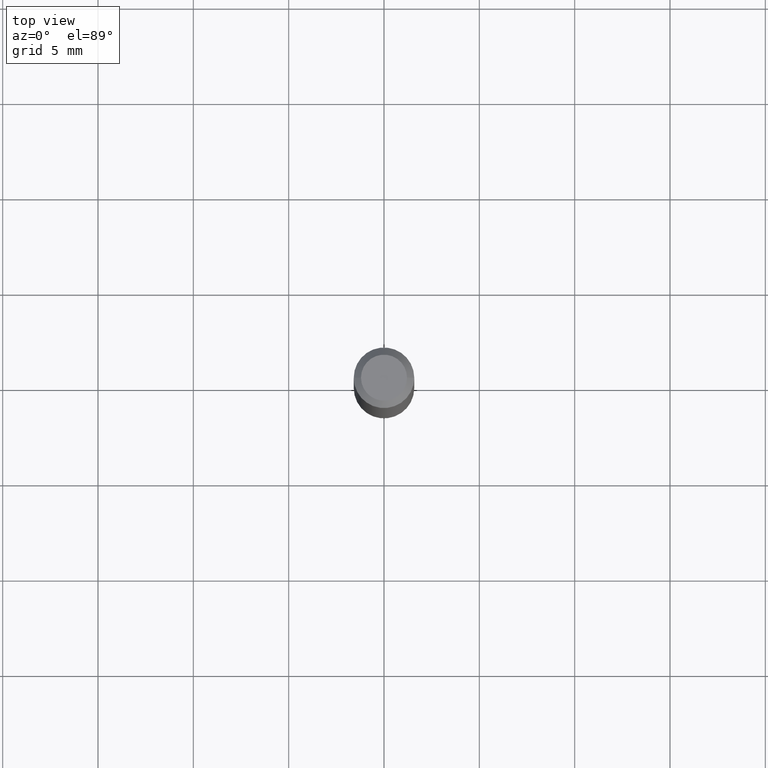
[diagram: clean part render]
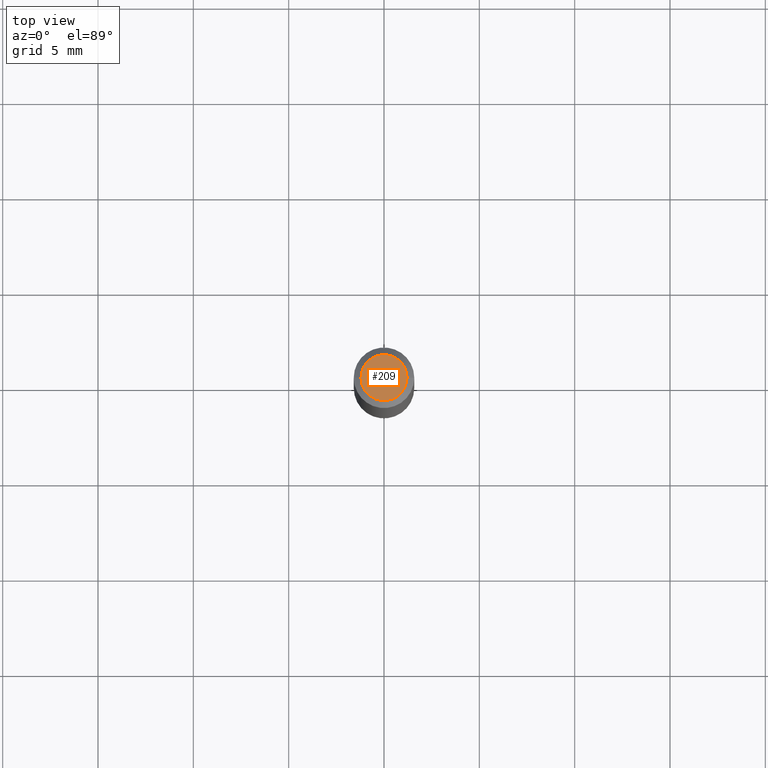
[diagram: same view with one face highlighted and labeled with its STEP entity id]
A machine part, top view. The second image highlights one B-rep face of the part: STEP entity #209.
In plain terms, the highlighted planar face has unit normal (0, -0, -1).
Its self-contained STEP definition (entity closure, byte-faithful):
#31 = FACE_OUTER_BOUND ( 'NONE', #199, .T. ) ;
#35 = AXIS2_PLACEMENT_3D ( 'NONE', #306, #129, #51 ) ;
#51 = DIRECTION ( 'NONE',  ( 1.000000000000000000, -6.982962677686267499E-15, 4.852736867747366768E-29 ) ) ;
#103 = CARTESIAN_POINT ( 'NONE',  ( -6.958212115706747638E-45, 9.934482783937485755E-31, 2.845348956448708805E-16 ) ) ;
#129 = DIRECTION ( 'NONE',  ( -2.445468806185136597E-29, 3.491481338843145583E-15, 1.000000000000000000 ) ) ;
#138 = CARTESIAN_POINT ( 'NONE',  ( 3.316907271900976096E-16, 0.04749999999999999362, -2.357791577261395620E-17 ) ) ;
#186 = EDGE_CURVE ( 'NONE', #259, #352, #384, .T. ) ;
#199 = EDGE_LOOP ( 'NONE', ( #454, #216 ) ) ;
#208 = AXIS2_PLACEMENT_3D ( 'NONE', #103, #240, #400 ) ;
#209 = ADVANCED_FACE ( 'NONE', ( #31 ), #314, .F. ) ;
#212 = CARTESIAN_POINT ( 'NONE',  ( 0.04749999999999999362, -4.035134999187574186E-16, 2.845348956448734443E-16 ) ) ;
#216 = ORIENTED_EDGE ( 'NONE', *, *, #186, .T. ) ;
#240 = DIRECTION ( 'NONE',  ( -2.445468806185136597E-29, 3.491481338843145583E-15, 1.000000000000000000 ) ) ;
#247 = CIRCLE ( 'NONE', #35, 0.04749999999999999362 ) ;
#259 = VERTEX_POINT ( 'NONE', #212 ) ;
#272 = CARTESIAN_POINT ( 'NONE',  ( -0.04749999999999999362, 3.578768372314216422E-16, 2.845348956448684646E-16 ) ) ;
#278 = DIRECTION ( 'NONE',  ( 2.438088387897960049E-29, -3.491481338843145188E-15, -1.000000000000000000 ) ) ;
#306 = CARTESIAN_POINT ( 'NONE',  ( -6.958212115706747638E-45, 9.934482783937485755E-31, 2.845348956448708805E-16 ) ) ;
#314 = PLANE ( 'NONE',  #430 ) ;
#320 = DIRECTION ( 'NONE',  ( -1.000000000000000000, 6.982962677686265922E-15, -4.876176775795935793E-29 ) ) ;
#324 = EDGE_CURVE ( 'NONE', #352, #259, #247, .T. ) ;
#352 = VERTEX_POINT ( 'NONE', #272 ) ;
#384 = CIRCLE ( 'NONE', #208, 0.04749999999999999362 ) ;
#400 = DIRECTION ( 'NONE',  ( 1.000000000000000000, -6.982962677686267499E-15, 4.852736867747366768E-29 ) ) ;
#430 = AXIS2_PLACEMENT_3D ( 'NONE', #138, #278, #320 ) ;
#454 = ORIENTED_EDGE ( 'NONE', *, *, #324, .T. ) ;